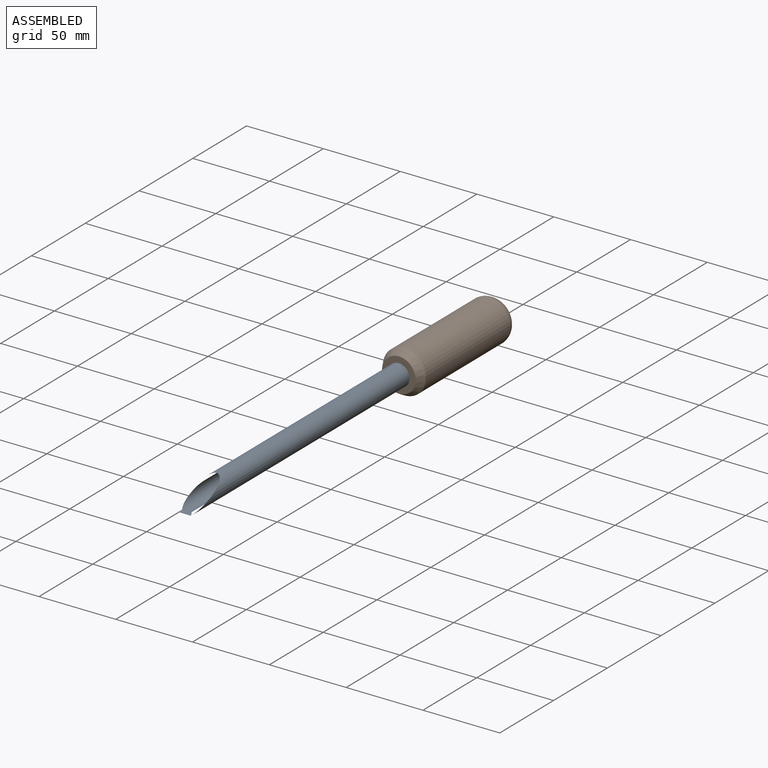
[diagram: assembled view]
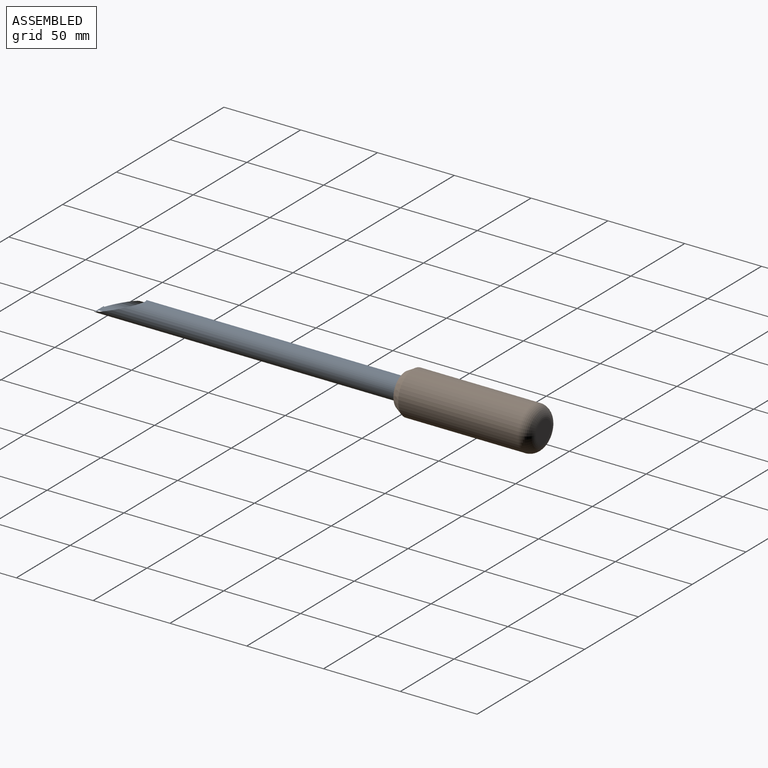
[diagram: assembled view, second angle]
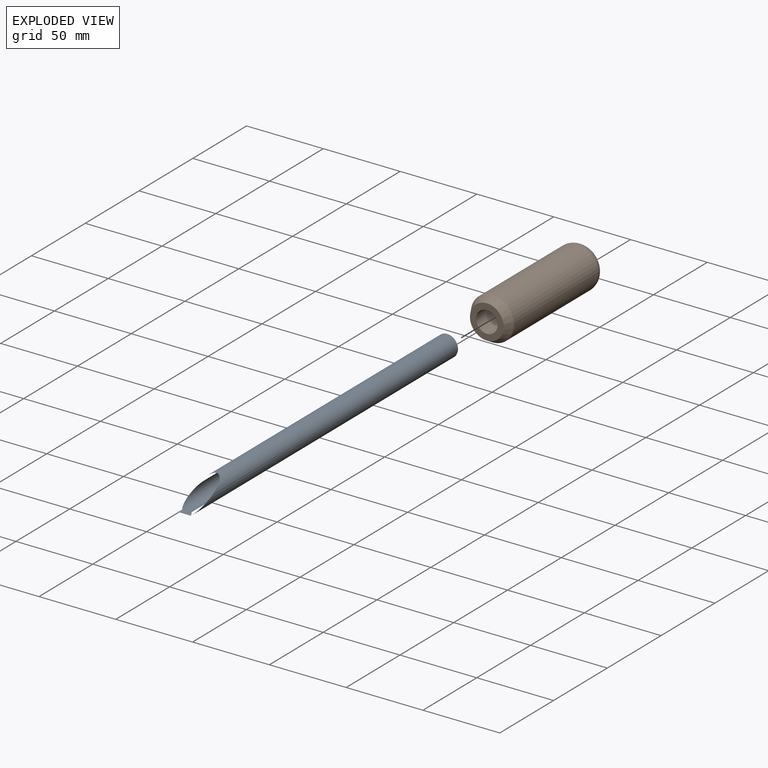
[diagram: exploded view]
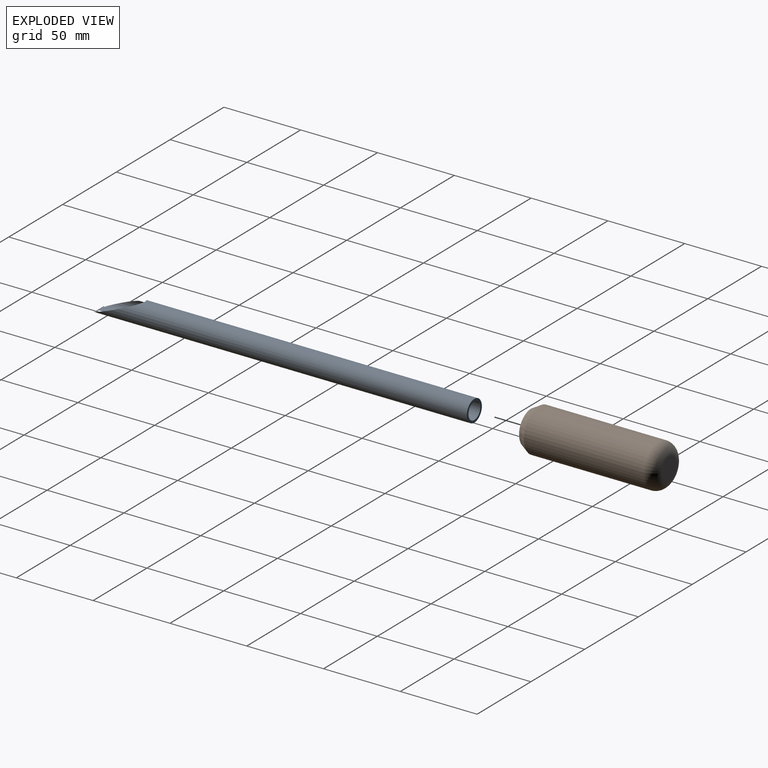
[diagram: exploded view, second angle]
ASSEMBLY  parts=2 mates=2
PART A: 5 faces, bbox 14x244.5x14 mm
  f0: cylinder r=5.5mm len=244.45mm, axis (0,-1,0), area 7988.7mm2, adj f1,f3
  f1: plane 14x14mm, normal (0,1,0), area 58.9mm2, adj f0,f2
  f2: cylinder r=7mm len=244.44mm, axis (0,-1,0), area 10122.7mm2, adj f1,f3,f4
  f3: plane 30.17x14mm, normal (0,-0.38,0.92), area 130.7mm2, adj f0,f2,f4
  f4: plane 8.66x3.62mm, normal (0,-0.38,-0.92), area 23.2mm2, adj f2,f3
PART B: 7 faces, bbox 30.3x90x30.3 mm
  f0: cylinder r=14mm len=77.8mm, axis (0,-1,0), area 6844mm2, adj f5,f6
  f1: plane 14x14mm, normal (0,1,0), area 153.9mm2, adj f6
  f2: plane 22x22mm, normal (0,-1,0), area 226.2mm2, adj f4,f5
  f3: cone r=0mm half-angle=59deg, axis (0,-1,0), area 179.6mm2, adj f4
  f4: cylinder r=7mm len=45mm, axis (0,-1,0), area 1979.2mm2, adj f2,f3
  f5: cone r=11mm half-angle=30deg, axis (0,1,0), area 471.2mm2, adj f0,f2
  f6: torus R=7mm, axis (0,-1,0), area 791.5mm2, adj f0,f1
PLACE A t=(19.49,1.8,-5.76)mm
PLACE B t=(19.49,206.8,-5.76)mm
MATE planar B.f3 <-> A.f2  axis (0,-1,0) through (19.49,251.8,-5.76)mm
MATE cylindrical B.f3 <-> A.f0  axis (0,-1,0) through (19.49,206.8,-5.76)mm
